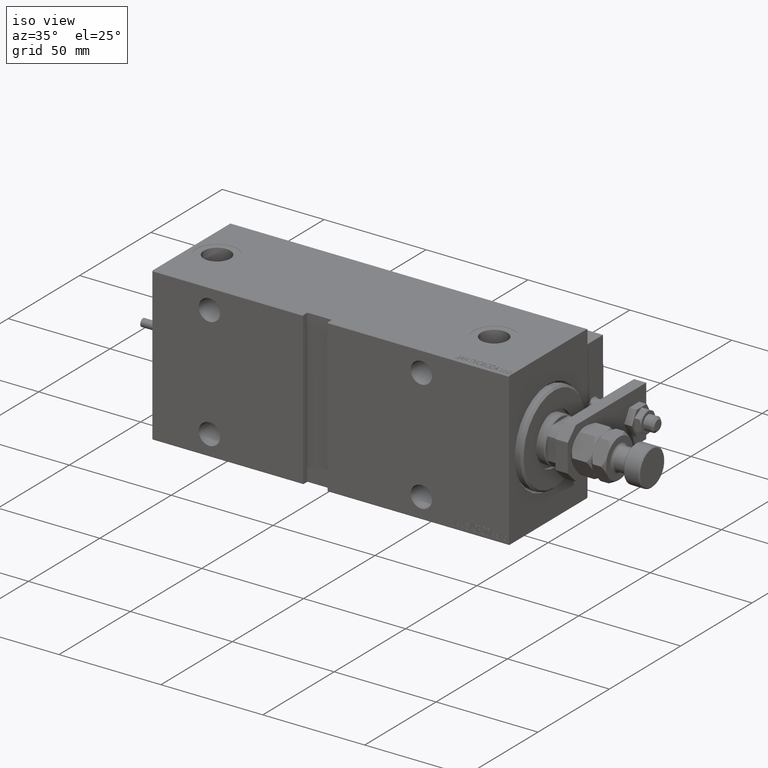
[diagram: clean part render]
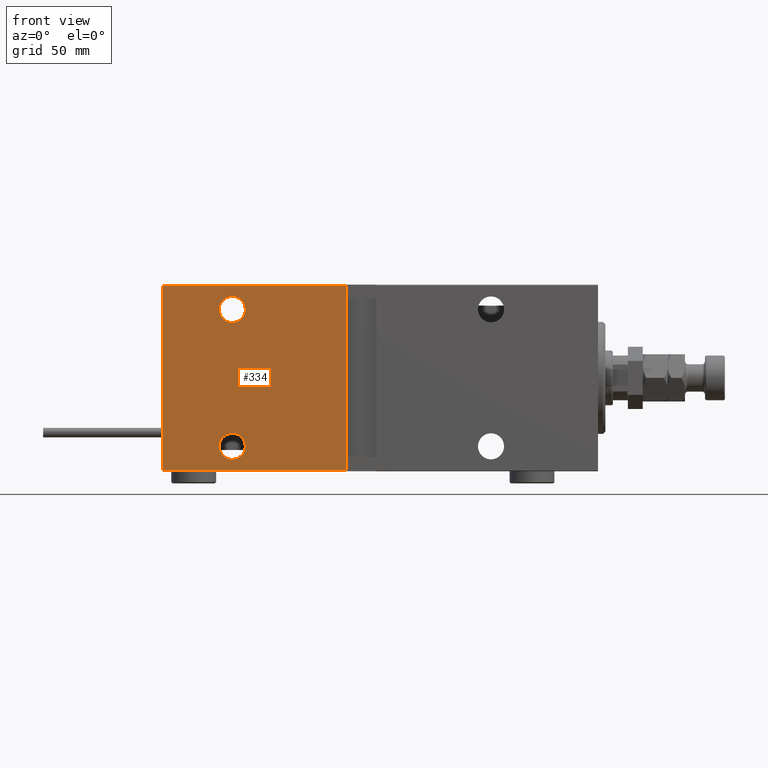
[diagram: tour spotlight — one face highlighted and labeled with its STEP entity id]
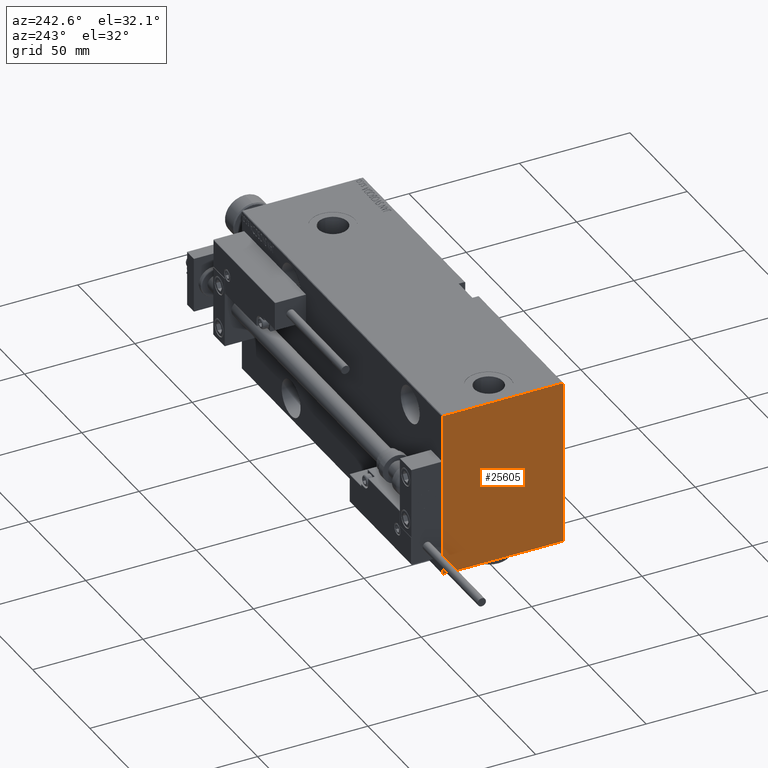
[diagram: tour spotlight — one face highlighted and labeled with its STEP entity id]
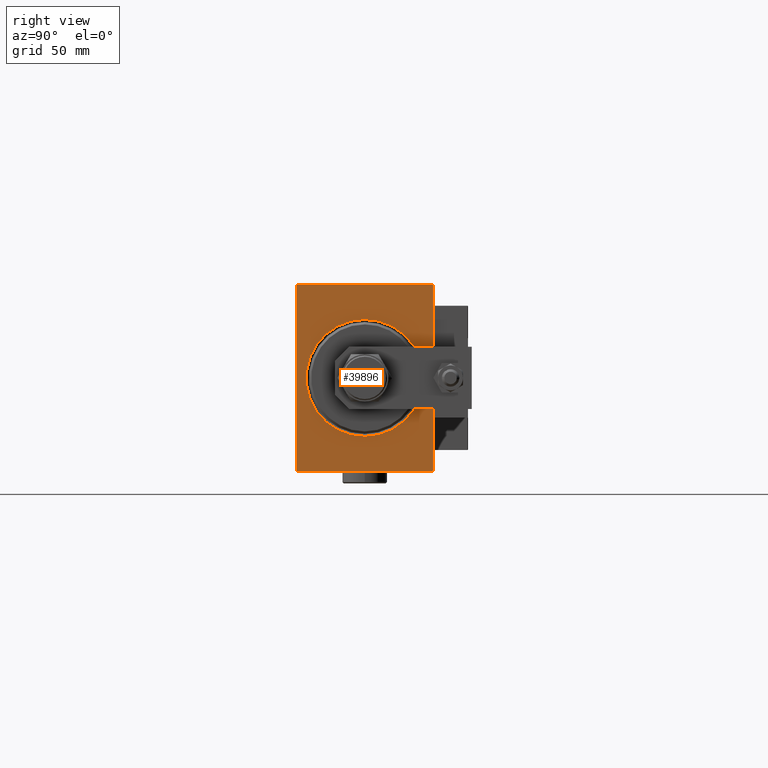
[diagram: tour spotlight — one face highlighted and labeled with its STEP entity id]
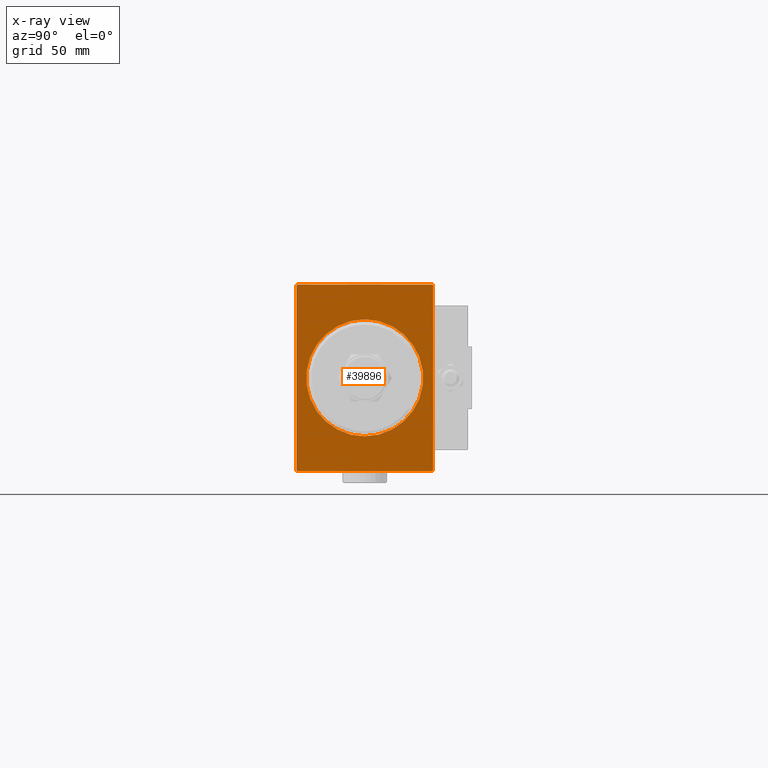
[diagram: x-ray of the same camera — body ghosted, this tour face saturated]
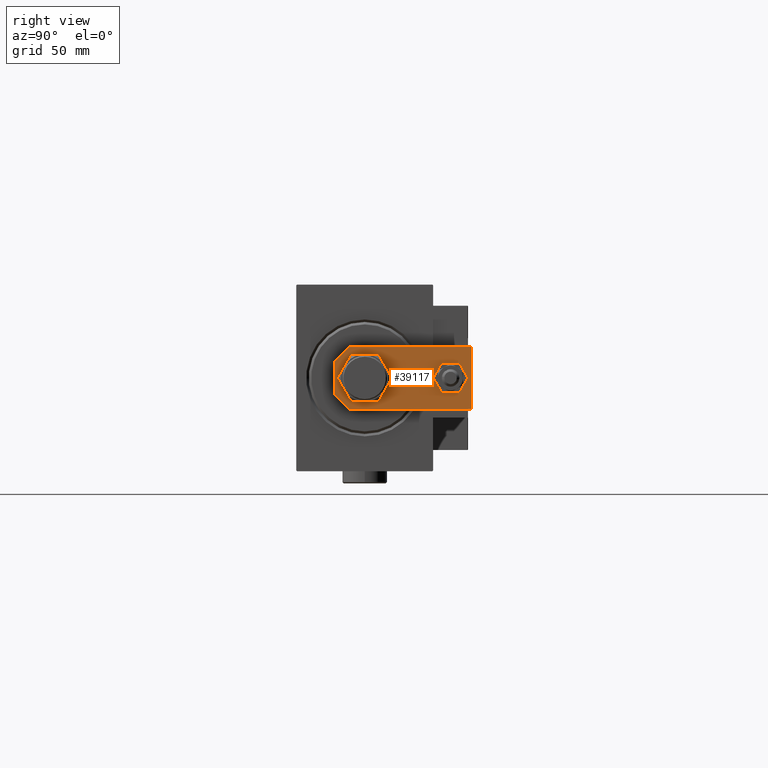
[diagram: tour spotlight — one face highlighted and labeled with its STEP entity id]
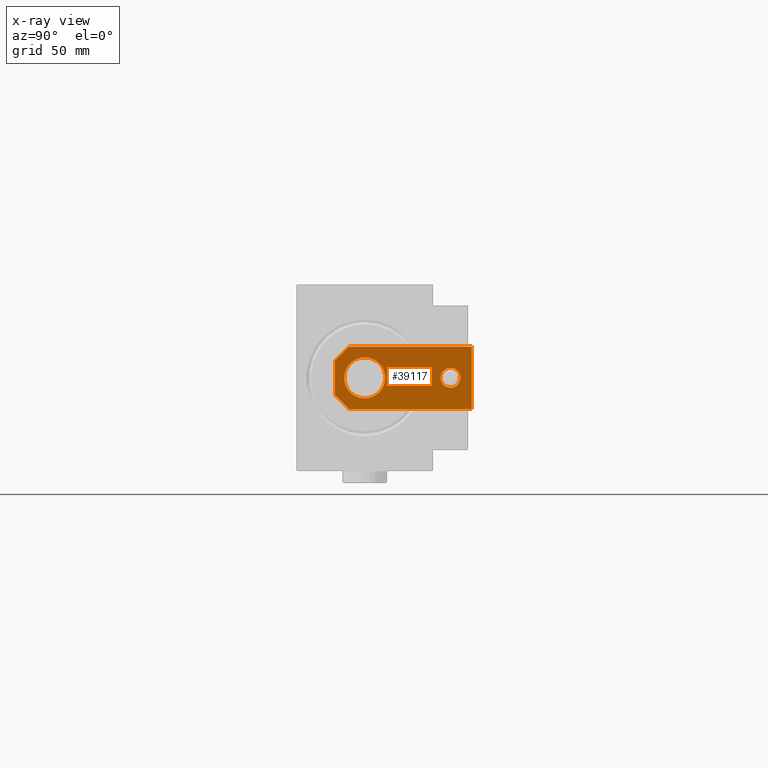
[diagram: x-ray of the same camera — body ghosted, this tour face saturated]
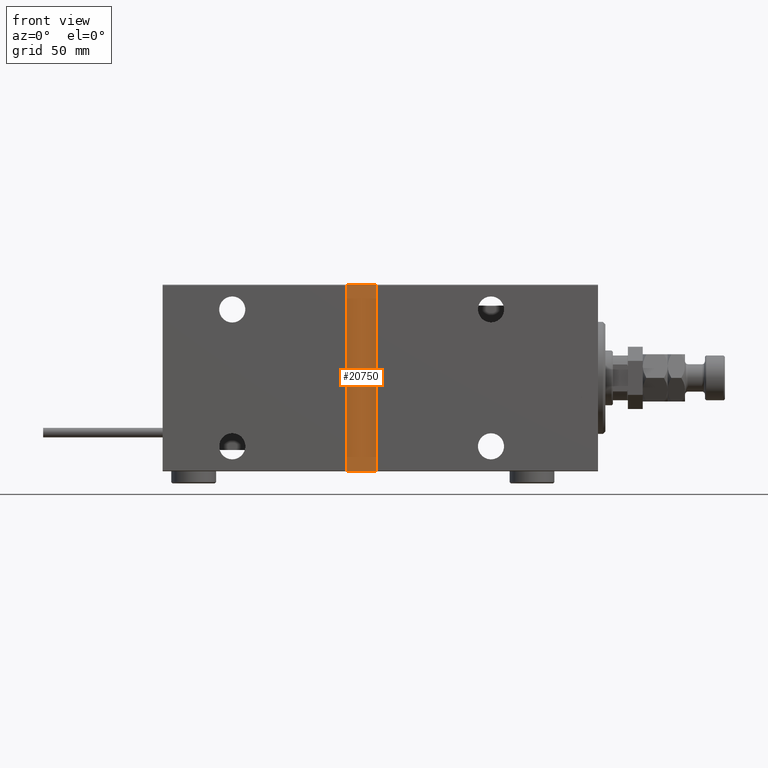
[diagram: tour spotlight — one face highlighted and labeled with its STEP entity id]
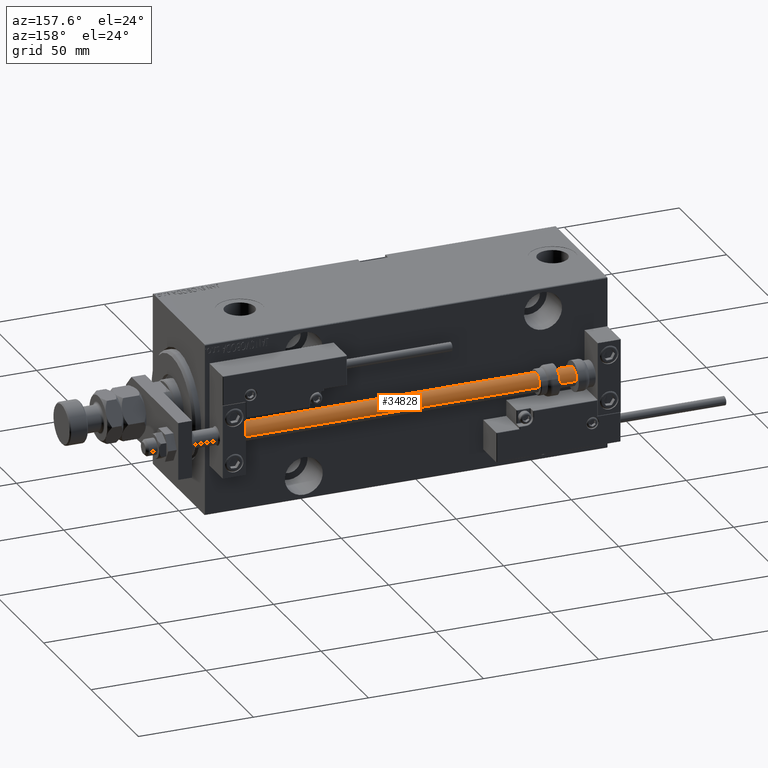
[diagram: tour spotlight — one face highlighted and labeled with its STEP entity id]
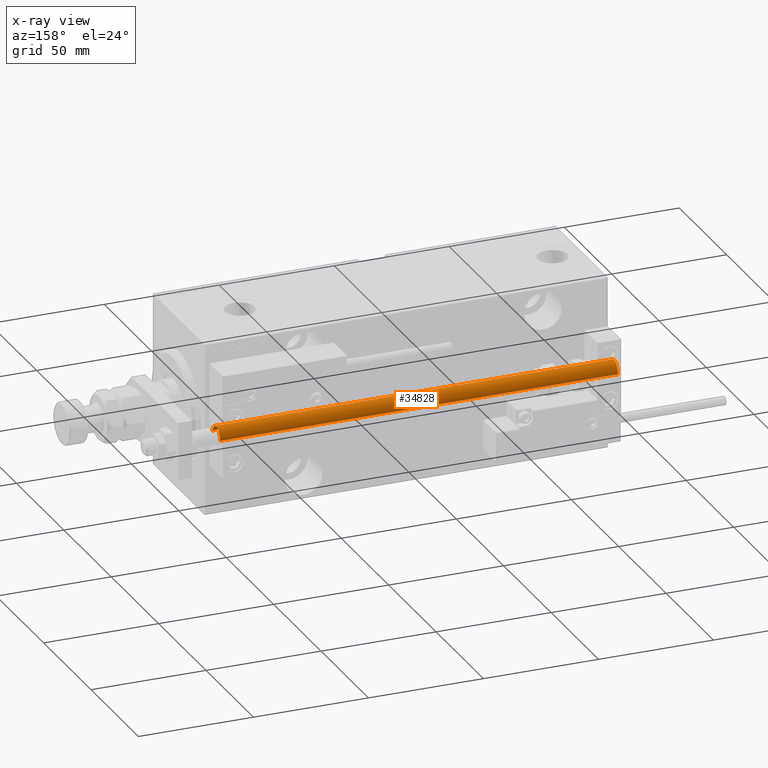
[diagram: x-ray of the same camera — body ghosted, this tour face saturated]
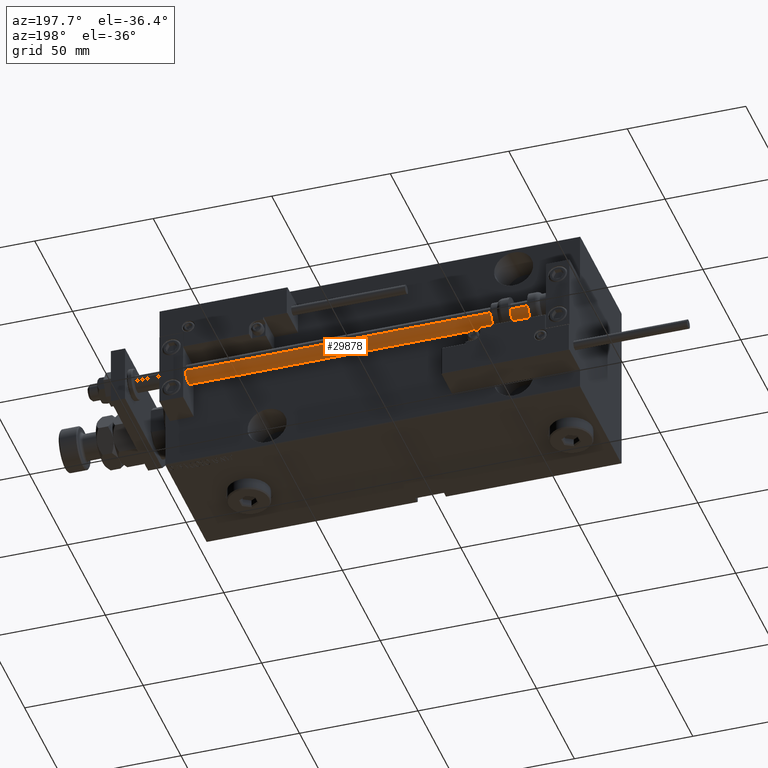
[diagram: tour spotlight — one face highlighted and labeled with its STEP entity id]
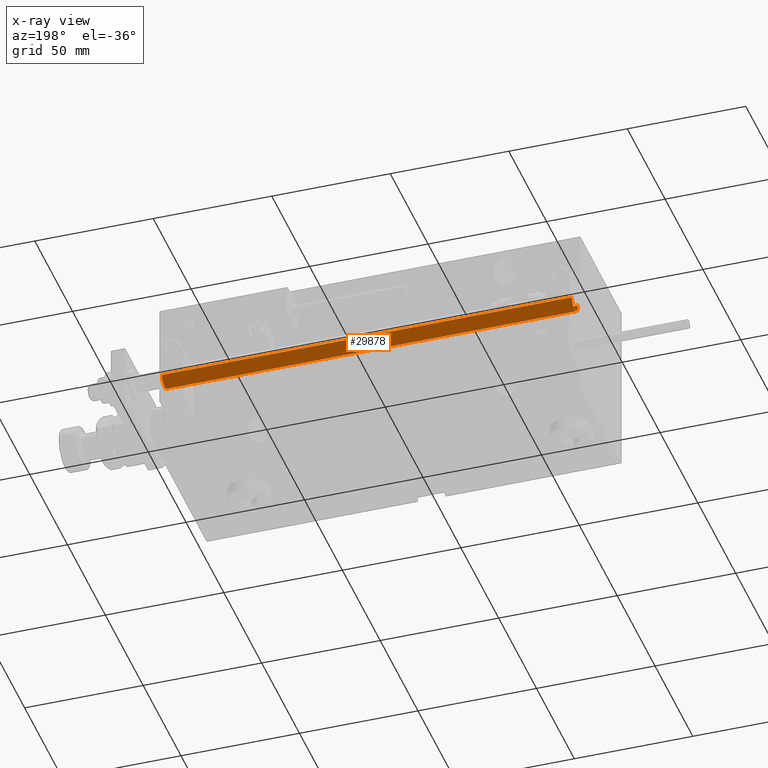
[diagram: x-ray of the same camera — body ghosted, this tour face saturated]
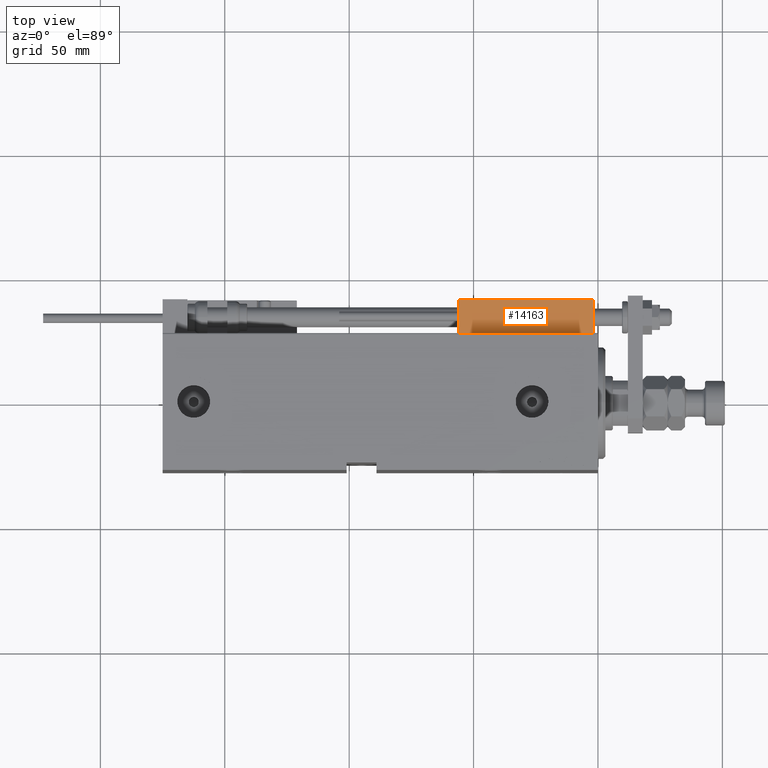
[diagram: tour spotlight — one face highlighted and labeled with its STEP entity id]
A machine part: a face-by-face anatomy tour. The part has 1398 B-rep faces; the first image is the clean iso view, then the 8 largest visible faces are spotlighted one at a time (largest first), each with its STEP entity span.

Face 1 — front view, entity #334. In plain terms, the highlighted planar face has unit normal (-0, 1, -0).
Definition (entity closure, byte-faithful):
#334 = ADVANCED_FACE ( 'NONE', ( #39919, #47668, #3257 ), #48726, .F. ) ;
#1486 = VECTOR ( 'NONE', #43554, 1000.000000000000000 ) ;
#3257 = FACE_OUTER_BOUND ( 'NONE', #50881, .T. ) ;
#3288 = CARTESIAN_POINT ( 'NONE',  ( 175.0000000000000000, 27.49999999999999645, 37.20000000000006679 ) ) ;
#3899 = EDGE_CURVE ( 'NONE', #31547, #39579, #16173, .T. ) ;
#4610 = ORIENTED_EDGE ( 'NONE', *, *, #22035, .F. ) ;
#4958 = VECTOR ( 'NONE', #7558, 1000.000000000000000 ) ;
#6464 = LINE ( 'NONE', #17442, #27558 ) ;
#7558 = DIRECTION ( 'NONE',  ( -1.000000000000000000, 0.000000000000000000, 0.000000000000000000 ) ) ;
#9884 = DIRECTION ( 'NONE',  ( 0.000000000000000000, 0.000000000000000000, -1.000000000000000000 ) ) ;
#9988 = DIRECTION ( 'NONE',  ( 0.000000000000000000, 0.000000000000000000, -1.000000000000000000 ) ) ;
#11289 = CARTESIAN_POINT ( 'NONE',  ( 175.0000000000000000, 27.50000000000000355, -37.50000000000000711 ) ) ;
#11298 = EDGE_LOOP ( 'NONE', ( #16494, #41712 ) ) ;
#11506 = CARTESIAN_POINT ( 'NONE',  ( 175.0000000000000000, 27.50000000000000355, -37.20000000000003837 ) ) ;
#11811 = DIRECTION ( 'NONE',  ( 0.000000000000000000, 9.251858538542970348E-17, -1.000000000000000000 ) ) ;
#12102 = LINE ( 'NONE', #3288, #48560 ) ;
#13460 = CIRCLE ( 'NONE', #46777, 5.250000000000000888 ) ;
#13742 = CARTESIAN_POINT ( 'NONE',  ( 147.0000000000000000, 27.49999999999999645, 27.50000000000000000 ) ) ;
#15150 = ORIENTED_EDGE ( 'NONE', *, *, #22013, .T. ) ;
#16173 = CIRCLE ( 'NONE', #23019, 5.250000000000004441 ) ;
#16494 = ORIENTED_EDGE ( 'NONE', *, *, #16657, .T. ) ;
#16657 = EDGE_CURVE ( 'NONE', #39579, #31547, #23499, .T. ) ;
#17442 = CARTESIAN_POINT ( 'NONE',  ( 100.9999999999999716, 27.50000000000000355, -37.50000000000008527 ) ) ;
#17743 = AXIS2_PLACEMENT_3D ( 'NONE', #11289, #32137, #11811 ) ;
#17915 = DIRECTION ( 'NONE',  ( 0.000000000000000000, -1.000000000000000000, -9.251858538542970348E-17 ) ) ;
#18815 = CARTESIAN_POINT ( 'NONE',  ( 146.9999999999999716, 27.50000000000000355, -27.50000000000000711 ) ) ;
#19558 = CARTESIAN_POINT ( 'NONE',  ( 147.0000000000000000, 27.49999999999999645, 22.24999999999999645 ) ) ;
#20394 = DIRECTION ( 'NONE',  ( 1.000000000000000000, 0.000000000000000000, 0.000000000000000000 ) ) ;
#22013 = EDGE_CURVE ( 'NONE', #46463, #47279, #13460, .T. ) ;
#22035 = EDGE_CURVE ( 'NONE', #44760, #41890, #34980, .T. ) ;
#22197 = CARTESIAN_POINT ( 'NONE',  ( 147.0000000000000000, 27.49999999999999645, 27.50000000000000000 ) ) ;
#23019 = AXIS2_PLACEMENT_3D ( 'NONE', #22197, #17915, #9884 ) ;
#23320 = EDGE_CURVE ( 'NONE', #44760, #52172, #36445, .T. ) ;
#23499 = CIRCLE ( 'NONE', #39717, 5.250000000000004441 ) ;
#25645 = DIRECTION ( 'NONE',  ( 0.000000000000000000, -1.000000000000000000, -9.251858538542970348E-17 ) ) ;
#25868 = CARTESIAN_POINT ( 'NONE',  ( 146.9999999999999716, 27.50000000000000355, -22.25000000000000355 ) ) ;
#26017 = EDGE_CURVE ( 'NONE', #49661, #41890, #12102, .T. ) ;
#26710 = CARTESIAN_POINT ( 'NONE',  ( 175.0000000000000000, 27.50000000000000355, -37.50000000000000711 ) ) ;
#27558 = VECTOR ( 'NONE', #42333, 1000.000000000000000 ) ;
#28826 = CIRCLE ( 'NONE', #35675, 5.250000000000000888 ) ;
#29164 = CARTESIAN_POINT ( 'NONE',  ( 100.9999999999999716, 27.50000000000000355, -37.20000000000003837 ) ) ;
#31547 = VERTEX_POINT ( 'NONE', #19558 ) ;
#32137 = DIRECTION ( 'NONE',  ( 0.000000000000000000, -1.000000000000000000, -9.251858538542970348E-17 ) ) ;
#34075 = DIRECTION ( 'NONE',  ( 0.000000000000000000, -1.000000000000000000, -9.251858538542970348E-17 ) ) ;
#34980 = LINE ( 'NONE', #26710, #1486 ) ;
#35660 = CARTESIAN_POINT ( 'NONE',  ( 175.0000000000000000, 27.50000000000000355, -37.20000000000003837 ) ) ;
#35675 = AXIS2_PLACEMENT_3D ( 'NONE', #18815, #51716, #9988 ) ;
#36445 = LINE ( 'NONE', #35660, #4958 ) ;
#39579 = VERTEX_POINT ( 'NONE', #45846 ) ;
#39717 = AXIS2_PLACEMENT_3D ( 'NONE', #13742, #34075, #46389 ) ;
#39720 = ORIENTED_EDGE ( 'NONE', *, *, #23320, .T. ) ;
#39768 = EDGE_CURVE ( 'NONE', #47279, #46463, #28826, .T. ) ;
#39919 = FACE_BOUND ( 'NONE', #48481, .T. ) ;
#40488 = ORIENTED_EDGE ( 'NONE', *, *, #51201, .F. ) ;
#41336 = CARTESIAN_POINT ( 'NONE',  ( 100.9999999999999716, 27.49999999999999645, 37.20000000000007390 ) ) ;
#41712 = ORIENTED_EDGE ( 'NONE', *, *, #3899, .T. ) ;
#41890 = VERTEX_POINT ( 'NONE', #50329 ) ;
#42333 = DIRECTION ( 'NONE',  ( 1.850371707708591851E-16, 9.251858538542959255E-17, -1.000000000000000000 ) ) ;
#43123 = CARTESIAN_POINT ( 'NONE',  ( 146.9999999999999716, 27.50000000000000355, -32.75000000000000711 ) ) ;
#43554 = DIRECTION ( 'NONE',  ( 0.000000000000000000, -9.251858538542970348E-17, 1.000000000000000000 ) ) ;
#44760 = VERTEX_POINT ( 'NONE', #11506 ) ;
#45846 = CARTESIAN_POINT ( 'NONE',  ( 147.0000000000000000, 27.49999999999999645, 32.75000000000000000 ) ) ;
#46236 = DIRECTION ( 'NONE',  ( 0.000000000000000000, 0.000000000000000000, -1.000000000000000000 ) ) ;
#46389 = DIRECTION ( 'NONE',  ( 0.000000000000000000, 0.000000000000000000, -1.000000000000000000 ) ) ;
#46463 = VERTEX_POINT ( 'NONE', #25868 ) ;
#46777 = AXIS2_PLACEMENT_3D ( 'NONE', #49716, #25645, #46236 ) ;
#47279 = VERTEX_POINT ( 'NONE', #43123 ) ;
#47668 = FACE_BOUND ( 'NONE', #11298, .T. ) ;
#48110 = ORIENTED_EDGE ( 'NONE', *, *, #26017, .T. ) ;
#48481 = EDGE_LOOP ( 'NONE', ( #15150, #51075 ) ) ;
#48560 = VECTOR ( 'NONE', #20394, 1000.000000000000000 ) ;
#48726 = PLANE ( 'NONE',  #17743 ) ;
#49661 = VERTEX_POINT ( 'NONE', #41336 ) ;
#49716 = CARTESIAN_POINT ( 'NONE',  ( 146.9999999999999716, 27.50000000000000355, -27.50000000000000711 ) ) ;
#50329 = CARTESIAN_POINT ( 'NONE',  ( 175.0000000000000000, 27.49999999999999645, 37.20000000000006679 ) ) ;
#50881 = EDGE_LOOP ( 'NONE', ( #4610, #39720, #40488, #48110 ) ) ;
#51075 = ORIENTED_EDGE ( 'NONE', *, *, #39768, .T. ) ;
#51201 = EDGE_CURVE ( 'NONE', #49661, #52172, #6464, .T. ) ;
#51716 = DIRECTION ( 'NONE',  ( 0.000000000000000000, -1.000000000000000000, -9.251858538542970348E-17 ) ) ;
#52172 = VERTEX_POINT ( 'NONE', #29164 ) ;

Face 2 — auxiliary view, entity #25605. In plain terms, the highlighted planar face has unit normal (-1, 0, 0).
Definition (entity closure, byte-faithful):
#243 = VECTOR ( 'NONE', #8000, 1000.000000000000000 ) ;
#674 = VERTEX_POINT ( 'NONE', #4515 ) ;
#1486 = VECTOR ( 'NONE', #43554, 1000.000000000000000 ) ;
#3439 = ORIENTED_EDGE ( 'NONE', *, *, #11818, .T. ) ;
#4207 = CARTESIAN_POINT ( 'NONE',  ( 175.0000000000000000, 0.000000000000000000, 0.000000000000000000 ) ) ;
#4515 = CARTESIAN_POINT ( 'NONE',  ( 175.0000000000000000, -27.50000000000000000, 37.20000000000005258 ) ) ;
#4786 = CARTESIAN_POINT ( 'NONE',  ( 175.0000000000000000, 32.35000000000018616, -32.34999999999980247 ) ) ;
#5695 = LINE ( 'NONE', #46891, #50171 ) ;
#6674 = ORIENTED_EDGE ( 'NONE', *, *, #35080, .T. ) ;
#7076 = ORIENTED_EDGE ( 'NONE', *, *, #19182, .T. ) ;
#7077 = VECTOR ( 'NONE', #37376, 1000.000000000000114 ) ;
#7674 = DIRECTION ( 'NONE',  ( 1.000000000000000000, 0.000000000000000000, 0.000000000000000000 ) ) ;
#7760 = EDGE_CURVE ( 'NONE', #18959, #12553, #52372, .T. ) ;
#7947 = CARTESIAN_POINT ( 'NONE',  ( 175.0000000000000000, -32.35000000000127329, -32.34999999999828191 ) ) ;
#8000 = DIRECTION ( 'NONE',  ( -0.000000000000000000, 0.7071067811865434649, 0.7071067811865516806 ) ) ;
#8376 = AXIS2_PLACEMENT_3D ( 'NONE', #4207, #7674, #52368 ) ;
#9019 = LINE ( 'NONE', #24828, #7077 ) ;
#10065 = ORIENTED_EDGE ( 'NONE', *, *, #21185, .T. ) ;
#11506 = CARTESIAN_POINT ( 'NONE',  ( 175.0000000000000000, 27.50000000000000355, -37.20000000000003837 ) ) ;
#11818 = EDGE_CURVE ( 'NONE', #41890, #50107, #9019, .T. ) ;
#12223 = CARTESIAN_POINT ( 'NONE',  ( 175.0000000000000000, -27.20000000000003482, -37.50000000000000711 ) ) ;
#12288 = EDGE_CURVE ( 'NONE', #29174, #44760, #32346, .T. ) ;
#12553 = VERTEX_POINT ( 'NONE', #12223 ) ;
#13313 = CARTESIAN_POINT ( 'NONE',  ( 175.0000000000000000, -27.50000000000000000, -37.20000000000000995 ) ) ;
#14301 = VECTOR ( 'NONE', #14861, 1000.000000000000000 ) ;
#14861 = DIRECTION ( 'NONE',  ( 0.000000000000000000, 0.000000000000000000, -1.000000000000000000 ) ) ;
#15415 = DIRECTION ( 'NONE',  ( 0.000000000000000000, -1.000000000000000000, -2.523234146875355998E-16 ) ) ;
#18959 = VERTEX_POINT ( 'NONE', #13313 ) ;
#19182 = EDGE_CURVE ( 'NONE', #50107, #40592, #31219, .T. ) ;
#19752 = DIRECTION ( 'NONE',  ( 0.000000000000000000, -0.7071067811865843211, -0.7071067811865108244 ) ) ;
#21008 = VECTOR ( 'NONE', #15415, 1000.000000000000000 ) ;
#21185 = EDGE_CURVE ( 'NONE', #12553, #29174, #5695, .T. ) ;
#21975 = CARTESIAN_POINT ( 'NONE',  ( 175.0000000000000000, 27.20000000000005613, 37.50000000000000711 ) ) ;
#22035 = EDGE_CURVE ( 'NONE', #44760, #41890, #34980, .T. ) ;
#22500 = ORIENTED_EDGE ( 'NONE', *, *, #23001, .T. ) ;
#23001 = EDGE_CURVE ( 'NONE', #674, #18959, #27178, .T. ) ;
#24828 = CARTESIAN_POINT ( 'NONE',  ( 175.0000000000000000, 32.35000000000002984, 32.35000000000002984 ) ) ;
#25605 = ADVANCED_FACE ( 'NONE', ( #48352 ), #28018, .T. ) ;
#26710 = CARTESIAN_POINT ( 'NONE',  ( 175.0000000000000000, 27.50000000000000355, -37.50000000000000711 ) ) ;
#27178 = LINE ( 'NONE', #34680, #14301 ) ;
#27238 = DIRECTION ( 'NONE',  ( -0.000000000000000000, 0.7071067811865149322, -0.7071067811865802133 ) ) ;
#27783 = CARTESIAN_POINT ( 'NONE',  ( 175.0000000000000000, -32.34999999999859455, 32.35000000000196252 ) ) ;
#28018 = PLANE ( 'NONE',  #8376 ) ;
#29174 = VERTEX_POINT ( 'NONE', #30398 ) ;
#29525 = CARTESIAN_POINT ( 'NONE',  ( 175.0000000000000000, -27.20000000000003126, 37.49999999999999289 ) ) ;
#30398 = CARTESIAN_POINT ( 'NONE',  ( 175.0000000000000000, 27.20000000000003837, -37.50000000000000711 ) ) ;
#30844 = VECTOR ( 'NONE', #27238, 999.9999999999998863 ) ;
#31219 = LINE ( 'NONE', #35752, #21008 ) ;
#32346 = LINE ( 'NONE', #4786, #243 ) ;
#33133 = ORIENTED_EDGE ( 'NONE', *, *, #12288, .T. ) ;
#33793 = DIRECTION ( 'NONE',  ( 0.000000000000000000, 1.000000000000000000, 0.000000000000000000 ) ) ;
#33968 = ORIENTED_EDGE ( 'NONE', *, *, #22035, .T. ) ;
#34680 = CARTESIAN_POINT ( 'NONE',  ( 175.0000000000000000, -27.50000000000000000, 37.49999999999999289 ) ) ;
#34980 = LINE ( 'NONE', #26710, #1486 ) ;
#35080 = EDGE_CURVE ( 'NONE', #40592, #674, #51864, .T. ) ;
#35752 = CARTESIAN_POINT ( 'NONE',  ( 175.0000000000000000, 27.49999999999999645, 37.50000000000000711 ) ) ;
#37109 = ORIENTED_EDGE ( 'NONE', *, *, #7760, .T. ) ;
#37376 = DIRECTION ( 'NONE',  ( -0.000000000000000000, -0.7071067811865474617, 0.7071067811865474617 ) ) ;
#40592 = VERTEX_POINT ( 'NONE', #29525 ) ;
#41257 = EDGE_LOOP ( 'NONE', ( #10065, #33133, #33968, #3439, #7076, #6674, #22500, #37109 ) ) ;
#41890 = VERTEX_POINT ( 'NONE', #50329 ) ;
#42780 = VECTOR ( 'NONE', #19752, 1000.000000000000000 ) ;
#43554 = DIRECTION ( 'NONE',  ( 0.000000000000000000, -9.251858538542970348E-17, 1.000000000000000000 ) ) ;
#44760 = VERTEX_POINT ( 'NONE', #11506 ) ;
#46891 = CARTESIAN_POINT ( 'NONE',  ( 175.0000000000000000, -27.50000000000000000, -37.50000000000000711 ) ) ;
#48352 = FACE_OUTER_BOUND ( 'NONE', #41257, .T. ) ;
#50107 = VERTEX_POINT ( 'NONE', #21975 ) ;
#50171 = VECTOR ( 'NONE', #33793, 1000.000000000000000 ) ;
#50329 = CARTESIAN_POINT ( 'NONE',  ( 175.0000000000000000, 27.49999999999999645, 37.20000000000006679 ) ) ;
#51864 = LINE ( 'NONE', #27783, #42780 ) ;
#52368 = DIRECTION ( 'NONE',  ( 0.000000000000000000, 0.000000000000000000, -1.000000000000000000 ) ) ;
#52372 = LINE ( 'NONE', #7947, #30844 ) ;

Face 3 — right view, entity #39896. An x-ray twin of the same camera follows (body ghosted, this face saturated) — the face is partly hidden behind the body. In plain terms, the highlighted planar face has unit normal (-1, 0, 0).
Definition (entity closure, byte-faithful):
#838 = PLANE ( 'NONE',  #37380 ) ;
#1529 = VECTOR ( 'NONE', #1710, 1000.000000000000000 ) ;
#1688 = CARTESIAN_POINT ( 'NONE',  ( 0.000000000000000000, -27.50000000000000000, -37.20000000000000995 ) ) ;
#1710 = DIRECTION ( 'NONE',  ( 0.000000000000000000, -0.7071067811865434649, -0.7071067811865516806 ) ) ;
#1807 = ORIENTED_EDGE ( 'NONE', *, *, #23193, .T. ) ;
#2557 = CARTESIAN_POINT ( 'NONE',  ( 0.000000000000000000, 2.877919977996275587E-15, -23.49999999999996092 ) ) ;
#3295 = CARTESIAN_POINT ( 'NONE',  ( 0.000000000000000000, -27.50000000000000000, -37.50000000000000711 ) ) ;
#5239 = CARTESIAN_POINT ( 'NONE',  ( 0.000000000000000000, 27.20000000000005613, 37.50000000000000711 ) ) ;
#5359 = ORIENTED_EDGE ( 'NONE', *, *, #17448, .F. ) ;
#5725 = LINE ( 'NONE', #34346, #1529 ) ;
#6671 = EDGE_CURVE ( 'NONE', #8447, #38928, #32878, .T. ) ;
#6847 = EDGE_CURVE ( 'NONE', #18197, #34400, #31236, .T. ) ;
#7270 = DIRECTION ( 'NONE',  ( 0.000000000000000000, 0.000000000000000000, -1.000000000000000000 ) ) ;
#7551 = FACE_OUTER_BOUND ( 'NONE', #34528, .T. ) ;
#8447 = VERTEX_POINT ( 'NONE', #42921 ) ;
#10334 = AXIS2_PLACEMENT_3D ( 'NONE', #48455, #36411, #7270 ) ;
#10455 = DIRECTION ( 'NONE',  ( -0.000000000000000000, 0.7071067811865474617, -0.7071067811865474617 ) ) ;
#12056 = ORIENTED_EDGE ( 'NONE', *, *, #44242, .T. ) ;
#12926 = VERTEX_POINT ( 'NONE', #2557 ) ;
#14147 = CARTESIAN_POINT ( 'NONE',  ( 0.000000000000000000, -27.20000000000003126, 37.49999999999999289 ) ) ;
#14283 = EDGE_CURVE ( 'NONE', #8447, #47062, #39954, .T. ) ;
#15428 = CIRCLE ( 'NONE', #10334, 23.49999999999996092 ) ;
#16146 = EDGE_CURVE ( 'NONE', #38452, #34400, #46576, .T. ) ;
#17448 = EDGE_CURVE ( 'NONE', #38452, #34977, #23239, .T. ) ;
#18197 = VERTEX_POINT ( 'NONE', #31401 ) ;
#18873 = ORIENTED_EDGE ( 'NONE', *, *, #28521, .T. ) ;
#19618 = AXIS2_PLACEMENT_3D ( 'NONE', #48022, #23691, #40003 ) ;
#19866 = CARTESIAN_POINT ( 'NONE',  ( 0.000000000000000000, -27.50000000000000000, 37.49999999999999289 ) ) ;
#20657 = DIRECTION ( 'NONE',  ( 1.000000000000000000, 0.000000000000000000, 0.000000000000000000 ) ) ;
#21341 = VECTOR ( 'NONE', #28147, 1000.000000000000000 ) ;
#21445 = CARTESIAN_POINT ( 'NONE',  ( 0.000000000000000000, 0.000000000000000000, 0.000000000000000000 ) ) ;
#22506 = CARTESIAN_POINT ( 'NONE',  ( 0.000000000000000000, 27.20000000000005613, 37.50000000000000711 ) ) ;
#23132 = CARTESIAN_POINT ( 'NONE',  ( 0.000000000000000000, -27.50000000000000000, 37.20000000000005258 ) ) ;
#23193 = EDGE_CURVE ( 'NONE', #18197, #47062, #5725, .T. ) ;
#23239 = LINE ( 'NONE', #43837, #35476 ) ;
#23691 = DIRECTION ( 'NONE',  ( 1.000000000000000000, 0.000000000000000000, 0.000000000000000000 ) ) ;
#23899 = CARTESIAN_POINT ( 'NONE',  ( 0.000000000000000000, 27.20000000000003837, -37.50000000000000711 ) ) ;
#25192 = CARTESIAN_POINT ( 'NONE',  ( 0.000000000000000000, 27.49999999999999645, 37.20000000000006679 ) ) ;
#26784 = EDGE_LOOP ( 'NONE', ( #12056, #31974 ) ) ;
#27406 = LINE ( 'NONE', #23132, #49619 ) ;
#27914 = CARTESIAN_POINT ( 'NONE',  ( 0.000000000000000000, -27.50000000000000000, 37.20000000000005258 ) ) ;
#28147 = DIRECTION ( 'NONE',  ( 0.000000000000000000, 0.000000000000000000, -1.000000000000000000 ) ) ;
#28157 = DIRECTION ( 'NONE',  ( 0.000000000000000000, 1.000000000000000000, 0.000000000000000000 ) ) ;
#28395 = VERTEX_POINT ( 'NONE', #50696 ) ;
#28521 = EDGE_CURVE ( 'NONE', #31319, #34977, #27406, .T. ) ;
#28523 = ORIENTED_EDGE ( 'NONE', *, *, #6847, .F. ) ;
#28845 = ORIENTED_EDGE ( 'NONE', *, *, #14283, .F. ) ;
#31236 = LINE ( 'NONE', #40332, #47038 ) ;
#31319 = VERTEX_POINT ( 'NONE', #27914 ) ;
#31401 = CARTESIAN_POINT ( 'NONE',  ( 0.000000000000000000, 27.50000000000000355, -37.20000000000003837 ) ) ;
#31974 = ORIENTED_EDGE ( 'NONE', *, *, #32521, .T. ) ;
#32347 = ORIENTED_EDGE ( 'NONE', *, *, #44489, .F. ) ;
#32521 = EDGE_CURVE ( 'NONE', #12926, #28395, #15428, .T. ) ;
#32878 = LINE ( 'NONE', #45709, #36780 ) ;
#33483 = DIRECTION ( 'NONE',  ( 0.000000000000000000, 0.000000000000000000, -1.000000000000000000 ) ) ;
#34346 = CARTESIAN_POINT ( 'NONE',  ( 0.000000000000000000, 27.50000000000000355, -37.20000000000003837 ) ) ;
#34400 = VERTEX_POINT ( 'NONE', #25192 ) ;
#34528 = EDGE_LOOP ( 'NONE', ( #5359, #37887, #28523, #1807, #28845, #41770, #32347, #18873 ) ) ;
#34977 = VERTEX_POINT ( 'NONE', #14147 ) ;
#35254 = DIRECTION ( 'NONE',  ( 0.000000000000000000, -9.251858538542970348E-17, 1.000000000000000000 ) ) ;
#35476 = VECTOR ( 'NONE', #52903, 1000.000000000000000 ) ;
#36135 = VECTOR ( 'NONE', #10455, 1000.000000000000114 ) ;
#36411 = DIRECTION ( 'NONE',  ( 1.000000000000000000, 0.000000000000000000, 0.000000000000000000 ) ) ;
#36780 = VECTOR ( 'NONE', #49201, 999.9999999999998863 ) ;
#37380 = AXIS2_PLACEMENT_3D ( 'NONE', #21445, #20657, #33483 ) ;
#37887 = ORIENTED_EDGE ( 'NONE', *, *, #16146, .T. ) ;
#38452 = VERTEX_POINT ( 'NONE', #5239 ) ;
#38928 = VERTEX_POINT ( 'NONE', #1688 ) ;
#39896 = ADVANCED_FACE ( 'NONE', ( #44216, #7551 ), #838, .F. ) ;
#39954 = LINE ( 'NONE', #3295, #47224 ) ;
#40003 = DIRECTION ( 'NONE',  ( 0.000000000000000000, 0.000000000000000000, -1.000000000000000000 ) ) ;
#40332 = CARTESIAN_POINT ( 'NONE',  ( 0.000000000000000000, 27.50000000000000355, -37.50000000000000711 ) ) ;
#41770 = ORIENTED_EDGE ( 'NONE', *, *, #6671, .T. ) ;
#42697 = CIRCLE ( 'NONE', #19618, 23.49999999999996092 ) ;
#42921 = CARTESIAN_POINT ( 'NONE',  ( 0.000000000000000000, -27.20000000000003482, -37.50000000000000711 ) ) ;
#43736 = DIRECTION ( 'NONE',  ( -0.000000000000000000, 0.7071067811865843211, 0.7071067811865108244 ) ) ;
#43837 = CARTESIAN_POINT ( 'NONE',  ( 0.000000000000000000, 27.49999999999999645, 37.50000000000000711 ) ) ;
#44216 = FACE_BOUND ( 'NONE', #26784, .T. ) ;
#44242 = EDGE_CURVE ( 'NONE', #28395, #12926, #42697, .T. ) ;
#44489 = EDGE_CURVE ( 'NONE', #31319, #38928, #47694, .T. ) ;
#45709 = CARTESIAN_POINT ( 'NONE',  ( 0.000000000000000000, -27.20000000000003482, -37.50000000000000711 ) ) ;
#46576 = LINE ( 'NONE', #22506, #36135 ) ;
#47038 = VECTOR ( 'NONE', #35254, 1000.000000000000000 ) ;
#47062 = VERTEX_POINT ( 'NONE', #23899 ) ;
#47224 = VECTOR ( 'NONE', #28157, 1000.000000000000000 ) ;
#47694 = LINE ( 'NONE', #19866, #21341 ) ;
#48022 = CARTESIAN_POINT ( 'NONE',  ( 0.000000000000000000, 0.000000000000000000, 0.000000000000000000 ) ) ;
#48455 = CARTESIAN_POINT ( 'NONE',  ( 0.000000000000000000, 0.000000000000000000, 0.000000000000000000 ) ) ;
#49201 = DIRECTION ( 'NONE',  ( -0.000000000000000000, -0.7071067811865149322, 0.7071067811865802133 ) ) ;
#49619 = VECTOR ( 'NONE', #43736, 1000.000000000000000 ) ;
#50696 = CARTESIAN_POINT ( 'NONE',  ( 0.000000000000000000, 0.000000000000000000, 23.49999999999996092 ) ) ;
#52903 = DIRECTION ( 'NONE',  ( 0.000000000000000000, -1.000000000000000000, -2.523234146875355998E-16 ) ) ;

Face 4 — right view, entity #39117. An x-ray twin of the same camera follows (body ghosted, this face saturated) — the face is partly hidden behind the body. In plain terms, the highlighted planar face has unit normal (1, 0, -0).
Definition (entity closure, byte-faithful):
#308 = PLANE ( 'NONE',  #40578 ) ;
#604 = ORIENTED_EDGE ( 'NONE', *, *, #20032, .F. ) ;
#742 = EDGE_LOOP ( 'NONE', ( #42684, #45619, #44112, #11750, #11146, #25909 ) ) ;
#944 = LINE ( 'NONE', #13243, #43672 ) ;
#2537 = VERTEX_POINT ( 'NONE', #6897 ) ;
#2676 = VERTEX_POINT ( 'NONE', #40605 ) ;
#3327 = ORIENTED_EDGE ( 'NONE', *, *, #6510, .F. ) ;
#3451 = AXIS2_PLACEMENT_3D ( 'NONE', #48665, #20308, #36358 ) ;
#3787 = LINE ( 'NONE', #20102, #41019 ) ;
#4223 = LINE ( 'NONE', #28820, #39588 ) ;
#4321 = VERTEX_POINT ( 'NONE', #51745 ) ;
#4326 = FACE_OUTER_BOUND ( 'NONE', #742, .T. ) ;
#4599 = DIRECTION ( 'NONE',  ( 0.7071067811865483499, 0.7071067811865465735, -0.000000000000000000 ) ) ;
#5601 = EDGE_CURVE ( 'NONE', #30887, #29383, #3787, .T. ) ;
#6510 = EDGE_CURVE ( 'NONE', #12782, #8914, #21407, .T. ) ;
#6897 = CARTESIAN_POINT ( 'NONE',  ( -6.840000000000012292, 4.814824860968089633E-32, 6.000000000000000000 ) ) ;
#7403 = DIRECTION ( 'NONE',  ( 1.000000000000000000, 0.000000000000000000, 0.000000000000000000 ) ) ;
#8726 = AXIS2_PLACEMENT_3D ( 'NONE', #34277, #25732, #34542 ) ;
#8832 = CARTESIAN_POINT ( 'NONE',  ( -3.420000000000013696, -3.420000000000006146, 6.000000000000000000 ) ) ;
#8914 = VERTEX_POINT ( 'NONE', #40150 ) ;
#11146 = ORIENTED_EDGE ( 'NONE', *, *, #12703, .T. ) ;
#11750 = ORIENTED_EDGE ( 'NONE', *, *, #39964, .T. ) ;
#12578 = LINE ( 'NONE', #8832, #30812 ) ;
#12703 = EDGE_CURVE ( 'NONE', #28697, #30887, #21316, .T. ) ;
#12782 = VERTEX_POINT ( 'NONE', #38159 ) ;
#13243 = CARTESIAN_POINT ( 'NONE',  ( -12.50000000000000355, 4.814824860968089633E-32, 6.000000000000000000 ) ) ;
#14061 = CARTESIAN_POINT ( 'NONE',  ( 12.50000000000000355, 4.814824860968089633E-32, 6.000000000000000000 ) ) ;
#14989 = CARTESIAN_POINT ( 'NONE',  ( -12.49999999999999822, 55.00000000000000000, 6.000000000000000000 ) ) ;
#17151 = DIRECTION ( 'NONE',  ( 1.000000000000000000, 0.000000000000000000, 0.000000000000000000 ) ) ;
#18327 = EDGE_CURVE ( 'NONE', #8914, #12782, #38963, .T. ) ;
#20032 = EDGE_CURVE ( 'NONE', #4321, #27362, #45814, .T. ) ;
#20102 = CARTESIAN_POINT ( 'NONE',  ( 12.50000000000000000, 55.00000000000000000, 6.000000000000000000 ) ) ;
#20308 = DIRECTION ( 'NONE',  ( 0.000000000000000000, 0.000000000000000000, 1.000000000000000000 ) ) ;
#21316 = LINE ( 'NONE', #14061, #24085 ) ;
#21407 = CIRCLE ( 'NONE', #3451, 4.000000000000000888 ) ;
#24085 = VECTOR ( 'NONE', #42710, 1000.000000000000000 ) ;
#24183 = CARTESIAN_POINT ( 'NONE',  ( 12.50000000000000355, 5.659999999999991260, 6.000000000000000000 ) ) ;
#24448 = DIRECTION ( 'NONE',  ( 1.000000000000000000, 0.000000000000000000, 0.000000000000000000 ) ) ;
#24636 = DIRECTION ( 'NONE',  ( 0.7071067811865467956, -0.7071067811865483499, 0.000000000000000000 ) ) ;
#24938 = LINE ( 'NONE', #33218, #28887 ) ;
#25447 = CARTESIAN_POINT ( 'NONE',  ( 0.000000000000000000, 0.000000000000000000, 6.000000000000000000 ) ) ;
#25732 = DIRECTION ( 'NONE',  ( 0.000000000000000000, 0.000000000000000000, 1.000000000000000000 ) ) ;
#25909 = ORIENTED_EDGE ( 'NONE', *, *, #5601, .T. ) ;
#26414 = CARTESIAN_POINT ( 'NONE',  ( 12.50000000000000000, 55.00000000000000000, 6.000000000000000000 ) ) ;
#27362 = VERTEX_POINT ( 'NONE', #47528 ) ;
#28519 = EDGE_CURVE ( 'NONE', #2537, #44000, #944, .T. ) ;
#28697 = VERTEX_POINT ( 'NONE', #24183 ) ;
#28820 = CARTESIAN_POINT ( 'NONE',  ( -12.49999999999999822, 55.00000000000000000, 6.000000000000000000 ) ) ;
#28887 = VECTOR ( 'NONE', #4599, 1000.000000000000114 ) ;
#29383 = VERTEX_POINT ( 'NONE', #14989 ) ;
#29563 = DIRECTION ( 'NONE',  ( 1.000000000000000000, 0.000000000000000000, 0.000000000000000000 ) ) ;
#30812 = VECTOR ( 'NONE', #24636, 1000.000000000000000 ) ;
#30887 = VERTEX_POINT ( 'NONE', #26414 ) ;
#32071 = ORIENTED_EDGE ( 'NONE', *, *, #18327, .F. ) ;
#33218 = CARTESIAN_POINT ( 'NONE',  ( 3.419999999999990603, -3.419999999999999485, 6.000000000000000000 ) ) ;
#33517 = CARTESIAN_POINT ( 'NONE',  ( -1.432611055310774642E-16, 46.50000000000000000, 6.000000000000000000 ) ) ;
#34277 = CARTESIAN_POINT ( 'NONE',  ( -9.629649721936179265E-32, 11.99999999999999645, 6.000000000000000000 ) ) ;
#34542 = DIRECTION ( 'NONE',  ( 1.000000000000000000, 0.000000000000000000, 0.000000000000000000 ) ) ;
#35189 = EDGE_LOOP ( 'NONE', ( #3327, #32071 ) ) ;
#35723 = EDGE_CURVE ( 'NONE', #2676, #2537, #12578, .T. ) ;
#36358 = DIRECTION ( 'NONE',  ( 1.000000000000000000, 0.000000000000000000, 0.000000000000000000 ) ) ;
#36409 = DIRECTION ( 'NONE',  ( -1.000000000000000000, 0.000000000000000000, 0.000000000000000000 ) ) ;
#37214 = FACE_BOUND ( 'NONE', #42128, .T. ) ;
#38159 = CARTESIAN_POINT ( 'NONE',  ( -4.000000000000000888, 46.50000000000000000, 6.000000000000000000 ) ) ;
#38963 = CIRCLE ( 'NONE', #50019, 4.000000000000000888 ) ;
#39117 = ADVANCED_FACE ( 'NONE', ( #49785, #4326, #37214 ), #308, .T. ) ;
#39588 = VECTOR ( 'NONE', #52646, 1000.000000000000000 ) ;
#39832 = AXIS2_PLACEMENT_3D ( 'NONE', #51570, #43809, #7403 ) ;
#39964 = EDGE_CURVE ( 'NONE', #44000, #28697, #24938, .T. ) ;
#40150 = CARTESIAN_POINT ( 'NONE',  ( 4.000000000000000888, 46.50000000000000000, 6.000000000000000000 ) ) ;
#40578 = AXIS2_PLACEMENT_3D ( 'NONE', #25447, #45510, #17151 ) ;
#40605 = CARTESIAN_POINT ( 'NONE',  ( -12.50000000000000355, 5.660000000000005471, 6.000000000000000000 ) ) ;
#41019 = VECTOR ( 'NONE', #36409, 1000.000000000000000 ) ;
#42128 = EDGE_LOOP ( 'NONE', ( #44126, #604 ) ) ;
#42684 = ORIENTED_EDGE ( 'NONE', *, *, #51735, .T. ) ;
#42710 = DIRECTION ( 'NONE',  ( -6.308085367188389994E-17, 1.000000000000000000, 0.000000000000000000 ) ) ;
#43672 = VECTOR ( 'NONE', #29563, 1000.000000000000000 ) ;
#43809 = DIRECTION ( 'NONE',  ( 0.000000000000000000, 0.000000000000000000, 1.000000000000000000 ) ) ;
#44000 = VERTEX_POINT ( 'NONE', #52682 ) ;
#44112 = ORIENTED_EDGE ( 'NONE', *, *, #28519, .T. ) ;
#44126 = ORIENTED_EDGE ( 'NONE', *, *, #50094, .F. ) ;
#45510 = DIRECTION ( 'NONE',  ( -0.000000000000000000, 0.000000000000000000, 1.000000000000000000 ) ) ;
#45619 = ORIENTED_EDGE ( 'NONE', *, *, #35723, .T. ) ;
#45814 = CIRCLE ( 'NONE', #39832, 8.250000000000000000 ) ;
#46077 = DIRECTION ( 'NONE',  ( 0.000000000000000000, 0.000000000000000000, 1.000000000000000000 ) ) ;
#47528 = CARTESIAN_POINT ( 'NONE',  ( -8.250000000000000000, 11.99999999999999645, 6.000000000000000000 ) ) ;
#48665 = CARTESIAN_POINT ( 'NONE',  ( -1.432611055310774642E-16, 46.50000000000000000, 6.000000000000000000 ) ) ;
#49785 = FACE_BOUND ( 'NONE', #35189, .T. ) ;
#50019 = AXIS2_PLACEMENT_3D ( 'NONE', #33517, #46077, #24448 ) ;
#50094 = EDGE_CURVE ( 'NONE', #27362, #4321, #51478, .T. ) ;
#51478 = CIRCLE ( 'NONE', #8726, 8.250000000000000000 ) ;
#51570 = CARTESIAN_POINT ( 'NONE',  ( -9.629649721936179265E-32, 11.99999999999999645, 6.000000000000000000 ) ) ;
#51735 = EDGE_CURVE ( 'NONE', #29383, #2676, #4223, .T. ) ;
#51745 = CARTESIAN_POINT ( 'NONE',  ( 8.250000000000000000, 11.99999999999999822, 6.000000000000000000 ) ) ;
#52646 = DIRECTION ( 'NONE',  ( -9.462128050782584375E-17, -1.000000000000000000, 0.000000000000000000 ) ) ;
#52682 = CARTESIAN_POINT ( 'NONE',  ( 6.839999999999998970, 4.814824860968089633E-32, 6.000000000000000000 ) ) ;

Face 5 — front view, entity #20750. In plain terms, the highlighted planar face has unit normal (-0, 1, -0).
Definition (entity closure, byte-faithful):
#461 = EDGE_CURVE ( 'NONE', #16827, #24466, #49513, .T. ) ;
#1560 = CARTESIAN_POINT ( 'NONE',  ( 88.99999999999997158, 24.49999999999999645, 37.50000000000000711 ) ) ;
#4626 = DIRECTION ( 'NONE',  ( 1.850371707708591851E-16, 9.251858538542959255E-17, -1.000000000000000000 ) ) ;
#5020 = ORIENTED_EDGE ( 'NONE', *, *, #461, .T. ) ;
#7999 = CARTESIAN_POINT ( 'NONE',  ( 100.9999999999999716, 24.49999999999999645, 37.50000000000000711 ) ) ;
#8523 = DIRECTION ( 'NONE',  ( 1.000000000000000000, -0.000000000000000000, -0.000000000000000000 ) ) ;
#10858 = DIRECTION ( 'NONE',  ( -1.000000000000000000, 0.000000000000000000, 0.000000000000000000 ) ) ;
#11758 = LINE ( 'NONE', #7999, #52916 ) ;
#12857 = DIRECTION ( 'NONE',  ( 0.000000000000000000, -9.251858538542959255E-17, 1.000000000000000000 ) ) ;
#16827 = VERTEX_POINT ( 'NONE', #19349 ) ;
#18313 = ORIENTED_EDGE ( 'NONE', *, *, #43910, .T. ) ;
#19349 = CARTESIAN_POINT ( 'NONE',  ( 88.99999999999997158, 24.50000000000000355, -37.50000000000008527 ) ) ;
#20750 = ADVANCED_FACE ( 'NONE', ( #27879 ), #40984, .F. ) ;
#24466 = VERTEX_POINT ( 'NONE', #1560 ) ;
#25753 = EDGE_CURVE ( 'NONE', #52669, #16827, #31185, .T. ) ;
#27879 = FACE_OUTER_BOUND ( 'NONE', #35553, .T. ) ;
#28136 = DIRECTION ( 'NONE',  ( 0.000000000000000000, 9.251858538542959255E-17, -1.000000000000000000 ) ) ;
#28665 = DIRECTION ( 'NONE',  ( 0.000000000000000000, -1.000000000000000000, -9.251858538542959255E-17 ) ) ;
#30206 = VERTEX_POINT ( 'NONE', #49358 ) ;
#30468 = AXIS2_PLACEMENT_3D ( 'NONE', #44205, #28665, #28136 ) ;
#31185 = LINE ( 'NONE', #47504, #43428 ) ;
#31426 = EDGE_CURVE ( 'NONE', #30206, #52669, #41810, .T. ) ;
#34857 = VECTOR ( 'NONE', #12857, 1000.000000000000000 ) ;
#35553 = EDGE_LOOP ( 'NONE', ( #5020, #18313, #49847, #42679 ) ) ;
#40984 = PLANE ( 'NONE',  #30468 ) ;
#41810 = LINE ( 'NONE', #45284, #50422 ) ;
#42679 = ORIENTED_EDGE ( 'NONE', *, *, #25753, .T. ) ;
#43428 = VECTOR ( 'NONE', #10858, 1000.000000000000000 ) ;
#43910 = EDGE_CURVE ( 'NONE', #24466, #30206, #11758, .T. ) ;
#44205 = CARTESIAN_POINT ( 'NONE',  ( 0.000000000000000000, 24.50000000000000000, 2.165775976068010180E-15 ) ) ;
#45284 = CARTESIAN_POINT ( 'NONE',  ( 100.9999999999999716, 24.50000000000000355, -37.50000000000008527 ) ) ;
#46018 = CARTESIAN_POINT ( 'NONE',  ( 88.99999999999997158, 24.50000000000000355, -37.50000000000008527 ) ) ;
#47332 = CARTESIAN_POINT ( 'NONE',  ( 100.9999999999999716, 24.50000000000000355, -37.50000000000000711 ) ) ;
#47504 = CARTESIAN_POINT ( 'NONE',  ( 100.9999999999999716, 24.50000000000000355, -37.50000000000008527 ) ) ;
#49358 = CARTESIAN_POINT ( 'NONE',  ( 100.9999999999999716, 24.49999999999999645, 37.50000000000000711 ) ) ;
#49513 = LINE ( 'NONE', #46018, #34857 ) ;
#49847 = ORIENTED_EDGE ( 'NONE', *, *, #31426, .T. ) ;
#50422 = VECTOR ( 'NONE', #4626, 1000.000000000000000 ) ;
#52669 = VERTEX_POINT ( 'NONE', #47332 ) ;
#52916 = VECTOR ( 'NONE', #8523, 1000.000000000000000 ) ;

Face 6 — auxiliary view, entity #34828. An x-ray twin of the same camera follows (body ghosted, this face saturated) — the face is partly hidden behind the body. In plain terms, the highlighted cylindrical surface (edge-blend (fillet) strip) has radius 4 mm, axis along (1, 0, -0).
Definition (entity closure, byte-faithful):
#3770 = FACE_OUTER_BOUND ( 'NONE', #28559, .T. ) ;
#6015 = CARTESIAN_POINT ( 'NONE',  ( 0.000000000000000000, 0.000000000000000000, 175.0000000000000000 ) ) ;
#6875 = VERTEX_POINT ( 'NONE', #51582 ) ;
#7512 = CYLINDRICAL_SURFACE ( 'NONE', #20239, 4.000000000000000000 ) ;
#7648 = CARTESIAN_POINT ( 'NONE',  ( -4.000000000000000000, 0.000000000000000000, 175.0000000000000000 ) ) ;
#8633 = EDGE_CURVE ( 'NONE', #16141, #13627, #35154, .T. ) ;
#10934 = ORIENTED_EDGE ( 'NONE', *, *, #8633, .T. ) ;
#12200 = LINE ( 'NONE', #7648, #48136 ) ;
#13627 = VERTEX_POINT ( 'NONE', #20325 ) ;
#14727 = LINE ( 'NONE', #21978, #45957 ) ;
#16141 = VERTEX_POINT ( 'NONE', #35323 ) ;
#18326 = DIRECTION ( 'NONE',  ( 1.000000000000000000, 0.000000000000000000, 0.000000000000000000 ) ) ;
#20239 = AXIS2_PLACEMENT_3D ( 'NONE', #40160, #52461, #36393 ) ;
#20325 = CARTESIAN_POINT ( 'NONE',  ( 4.000000000000000000, 4.898587196589412829E-16, 2.000000000000029310 ) ) ;
#21978 = CARTESIAN_POINT ( 'NONE',  ( 4.000000000000000000, 4.898587196589412829E-16, 175.0000000000000000 ) ) ;
#23526 = EDGE_CURVE ( 'NONE', #6875, #13627, #14727, .T. ) ;
#24951 = DIRECTION ( 'NONE',  ( -0.000000000000000000, -0.000000000000000000, 1.000000000000000000 ) ) ;
#27721 = AXIS2_PLACEMENT_3D ( 'NONE', #6015, #29822, #18326 ) ;
#28559 = EDGE_LOOP ( 'NONE', ( #45011, #37070, #41042, #10934 ) ) ;
#29425 = CIRCLE ( 'NONE', #27721, 4.000000000000000000 ) ;
#29822 = DIRECTION ( 'NONE',  ( 0.000000000000000000, 0.000000000000000000, 1.000000000000000000 ) ) ;
#32176 = DIRECTION ( 'NONE',  ( 1.000000000000000000, 0.000000000000000000, 0.000000000000000000 ) ) ;
#34828 = ADVANCED_FACE ( 'NONE', ( #3770 ), #7512, .T. ) ;
#35154 = CIRCLE ( 'NONE', #35996, 4.000000000000000000 ) ;
#35323 = CARTESIAN_POINT ( 'NONE',  ( -4.000000000000000000, 0.000000000000000000, 2.000000000000029310 ) ) ;
#35996 = AXIS2_PLACEMENT_3D ( 'NONE', #48762, #24951, #32176 ) ;
#36274 = DIRECTION ( 'NONE',  ( -0.000000000000000000, -0.000000000000000000, -1.000000000000000000 ) ) ;
#36393 = DIRECTION ( 'NONE',  ( -1.000000000000000000, 0.000000000000000000, 0.000000000000000000 ) ) ;
#36571 = EDGE_CURVE ( 'NONE', #44382, #6875, #29425, .T. ) ;
#37070 = ORIENTED_EDGE ( 'NONE', *, *, #36571, .F. ) ;
#37519 = EDGE_CURVE ( 'NONE', #44382, #16141, #12200, .T. ) ;
#38096 = CARTESIAN_POINT ( 'NONE',  ( -4.000000000000000000, 0.000000000000000000, 175.0000000000000000 ) ) ;
#40160 = CARTESIAN_POINT ( 'NONE',  ( 0.000000000000000000, 0.000000000000000000, 175.0000000000000000 ) ) ;
#41042 = ORIENTED_EDGE ( 'NONE', *, *, #37519, .T. ) ;
#44382 = VERTEX_POINT ( 'NONE', #38096 ) ;
#45011 = ORIENTED_EDGE ( 'NONE', *, *, #23526, .F. ) ;
#45957 = VECTOR ( 'NONE', #50869, 1000.000000000000000 ) ;
#48136 = VECTOR ( 'NONE', #36274, 1000.000000000000000 ) ;
#48762 = CARTESIAN_POINT ( 'NONE',  ( 0.000000000000000000, 0.000000000000000000, 2.000000000000029310 ) ) ;
#50869 = DIRECTION ( 'NONE',  ( -0.000000000000000000, -0.000000000000000000, -1.000000000000000000 ) ) ;
#51582 = CARTESIAN_POINT ( 'NONE',  ( 4.000000000000000000, 4.898587196589412829E-16, 175.0000000000000000 ) ) ;
#52461 = DIRECTION ( 'NONE',  ( -0.000000000000000000, -0.000000000000000000, -1.000000000000000000 ) ) ;

Face 7 — auxiliary view, entity #29878. An x-ray twin of the same camera follows (body ghosted, this face saturated) — the face is partly hidden behind the body. In plain terms, the highlighted cylindrical surface (edge-blend (fillet) strip) has radius 4 mm, axis along (1, 0, -0).
Definition (entity closure, byte-faithful):
#988 = FACE_OUTER_BOUND ( 'NONE', #27486, .T. ) ;
#1125 = DIRECTION ( 'NONE',  ( 1.000000000000000000, 0.000000000000000000, 0.000000000000000000 ) ) ;
#1265 = DIRECTION ( 'NONE',  ( -0.000000000000000000, -0.000000000000000000, -1.000000000000000000 ) ) ;
#5233 = DIRECTION ( 'NONE',  ( 1.000000000000000000, 0.000000000000000000, 0.000000000000000000 ) ) ;
#6875 = VERTEX_POINT ( 'NONE', #51582 ) ;
#7648 = CARTESIAN_POINT ( 'NONE',  ( -4.000000000000000000, 0.000000000000000000, 175.0000000000000000 ) ) ;
#7962 = CIRCLE ( 'NONE', #21646, 4.000000000000000000 ) ;
#10348 = CIRCLE ( 'NONE', #22295, 4.000000000000000000 ) ;
#12200 = LINE ( 'NONE', #7648, #48136 ) ;
#13627 = VERTEX_POINT ( 'NONE', #20325 ) ;
#14727 = LINE ( 'NONE', #21978, #45957 ) ;
#16141 = VERTEX_POINT ( 'NONE', #35323 ) ;
#20325 = CARTESIAN_POINT ( 'NONE',  ( 4.000000000000000000, 4.898587196589412829E-16, 2.000000000000029310 ) ) ;
#21646 = AXIS2_PLACEMENT_3D ( 'NONE', #49909, #44845, #5233 ) ;
#21978 = CARTESIAN_POINT ( 'NONE',  ( 4.000000000000000000, 4.898587196589412829E-16, 175.0000000000000000 ) ) ;
#22295 = AXIS2_PLACEMENT_3D ( 'NONE', #32973, #25473, #1125 ) ;
#23526 = EDGE_CURVE ( 'NONE', #6875, #13627, #14727, .T. ) ;
#25080 = DIRECTION ( 'NONE',  ( -1.000000000000000000, 0.000000000000000000, 0.000000000000000000 ) ) ;
#25473 = DIRECTION ( 'NONE',  ( -0.000000000000000000, -0.000000000000000000, 1.000000000000000000 ) ) ;
#25606 = CYLINDRICAL_SURFACE ( 'NONE', #27940, 4.000000000000000000 ) ;
#27486 = EDGE_LOOP ( 'NONE', ( #34007, #45883, #46900, #44777 ) ) ;
#27940 = AXIS2_PLACEMENT_3D ( 'NONE', #33359, #1265, #25080 ) ;
#29878 = ADVANCED_FACE ( 'NONE', ( #988 ), #25606, .T. ) ;
#32973 = CARTESIAN_POINT ( 'NONE',  ( 0.000000000000000000, 0.000000000000000000, 2.000000000000029310 ) ) ;
#33359 = CARTESIAN_POINT ( 'NONE',  ( 0.000000000000000000, 0.000000000000000000, 175.0000000000000000 ) ) ;
#34007 = ORIENTED_EDGE ( 'NONE', *, *, #37180, .F. ) ;
#35323 = CARTESIAN_POINT ( 'NONE',  ( -4.000000000000000000, 0.000000000000000000, 2.000000000000029310 ) ) ;
#36274 = DIRECTION ( 'NONE',  ( -0.000000000000000000, -0.000000000000000000, -1.000000000000000000 ) ) ;
#37180 = EDGE_CURVE ( 'NONE', #6875, #44382, #7962, .T. ) ;
#37519 = EDGE_CURVE ( 'NONE', #44382, #16141, #12200, .T. ) ;
#38096 = CARTESIAN_POINT ( 'NONE',  ( -4.000000000000000000, 0.000000000000000000, 175.0000000000000000 ) ) ;
#44382 = VERTEX_POINT ( 'NONE', #38096 ) ;
#44777 = ORIENTED_EDGE ( 'NONE', *, *, #37519, .F. ) ;
#44845 = DIRECTION ( 'NONE',  ( 0.000000000000000000, 0.000000000000000000, 1.000000000000000000 ) ) ;
#45883 = ORIENTED_EDGE ( 'NONE', *, *, #23526, .T. ) ;
#45957 = VECTOR ( 'NONE', #50869, 1000.000000000000000 ) ;
#46900 = ORIENTED_EDGE ( 'NONE', *, *, #47207, .T. ) ;
#47207 = EDGE_CURVE ( 'NONE', #13627, #16141, #10348, .T. ) ;
#48136 = VECTOR ( 'NONE', #36274, 1000.000000000000000 ) ;
#49909 = CARTESIAN_POINT ( 'NONE',  ( 0.000000000000000000, 0.000000000000000000, 175.0000000000000000 ) ) ;
#50869 = DIRECTION ( 'NONE',  ( -0.000000000000000000, -0.000000000000000000, -1.000000000000000000 ) ) ;
#51582 = CARTESIAN_POINT ( 'NONE',  ( 4.000000000000000000, 4.898587196589412829E-16, 175.0000000000000000 ) ) ;

Face 8 — top view, entity #14163. In plain terms, the highlighted planar face has unit normal (-0, -0, -1).
Definition (entity closure, byte-faithful):
#1527 = VERTEX_POINT ( 'NONE', #41708 ) ;
#2236 = CARTESIAN_POINT ( 'NONE',  ( -26.99999999999993605, 20.00000000000002132, 13.70000000000000107 ) ) ;
#4841 = VECTOR ( 'NONE', #24660, 1000.000000000000000 ) ;
#6521 = DIRECTION ( 'NONE',  ( 1.000000000000000000, -6.424901762877063495E-17, 0.000000000000000000 ) ) ;
#8745 = CARTESIAN_POINT ( 'NONE',  ( -26.99999999999993605, 20.00000000000002132, 14.00000000000000000 ) ) ;
#10467 = CARTESIAN_POINT ( 'NONE',  ( 27.00000000000006395, 20.00000000000001776, 14.00000000000000000 ) ) ;
#11861 = EDGE_CURVE ( 'NONE', #44421, #20255, #41410, .T. ) ;
#13036 = DIRECTION ( 'NONE',  ( 1.000000000000000000, -6.424901762877063495E-17, -0.000000000000000000 ) ) ;
#14046 = CARTESIAN_POINT ( 'NONE',  ( 27.00000000000006395, 20.00000000000001776, 13.70000000000000107 ) ) ;
#14163 = ADVANCED_FACE ( 'NONE', ( #42922 ), #47192, .F. ) ;
#14462 = DIRECTION ( 'NONE',  ( -0.000000000000000000, -0.000000000000000000, -1.000000000000000000 ) ) ;
#17188 = EDGE_CURVE ( 'NONE', #20255, #1527, #19286, .T. ) ;
#17923 = CARTESIAN_POINT ( 'NONE',  ( -26.99999999999993605, 20.00000000000002132, 0.000000000000000000 ) ) ;
#18226 = ORIENTED_EDGE ( 'NONE', *, *, #31976, .F. ) ;
#18796 = VERTEX_POINT ( 'NONE', #17923 ) ;
#19286 = LINE ( 'NONE', #10467, #36265 ) ;
#19578 = ORIENTED_EDGE ( 'NONE', *, *, #11861, .T. ) ;
#20255 = VERTEX_POINT ( 'NONE', #14046 ) ;
#20748 = EDGE_CURVE ( 'NONE', #1527, #18796, #48214, .T. ) ;
#24660 = DIRECTION ( 'NONE',  ( -1.000000000000000000, 6.424901762877062263E-17, 0.000000000000000000 ) ) ;
#25355 = CARTESIAN_POINT ( 'NONE',  ( 27.00000000000006395, 20.00000000000001776, 13.70000000000000107 ) ) ;
#25595 = DIRECTION ( 'NONE',  ( -0.000000000000000000, -0.000000000000000000, -1.000000000000000000 ) ) ;
#27672 = ORIENTED_EDGE ( 'NONE', *, *, #17188, .T. ) ;
#31976 = EDGE_CURVE ( 'NONE', #44421, #18796, #37096, .T. ) ;
#32509 = VECTOR ( 'NONE', #25595, 1000.000000000000000 ) ;
#36265 = VECTOR ( 'NONE', #14462, 1000.000000000000000 ) ;
#36983 = VECTOR ( 'NONE', #13036, 1000.000000000000000 ) ;
#37096 = LINE ( 'NONE', #8745, #32509 ) ;
#39162 = DIRECTION ( 'NONE',  ( -6.424901762877063495E-17, -1.000000000000000000, 0.000000000000000000 ) ) ;
#39660 = ORIENTED_EDGE ( 'NONE', *, *, #20748, .T. ) ;
#40190 = CARTESIAN_POINT ( 'NONE',  ( 27.00000000000006395, 20.00000000000001776, 0.000000000000000000 ) ) ;
#41410 = LINE ( 'NONE', #25355, #36983 ) ;
#41708 = CARTESIAN_POINT ( 'NONE',  ( 27.00000000000006395, 20.00000000000001776, 0.000000000000000000 ) ) ;
#42922 = FACE_OUTER_BOUND ( 'NONE', #50784, .T. ) ;
#43191 = CARTESIAN_POINT ( 'NONE',  ( 27.00000000000006395, 20.00000000000001776, 14.00000000000000000 ) ) ;
#44421 = VERTEX_POINT ( 'NONE', #2236 ) ;
#47192 = PLANE ( 'NONE',  #48021 ) ;
#48021 = AXIS2_PLACEMENT_3D ( 'NONE', #43191, #39162, #6521 ) ;
#48214 = LINE ( 'NONE', #40190, #4841 ) ;
#50784 = EDGE_LOOP ( 'NONE', ( #18226, #19578, #27672, #39660 ) ) ;